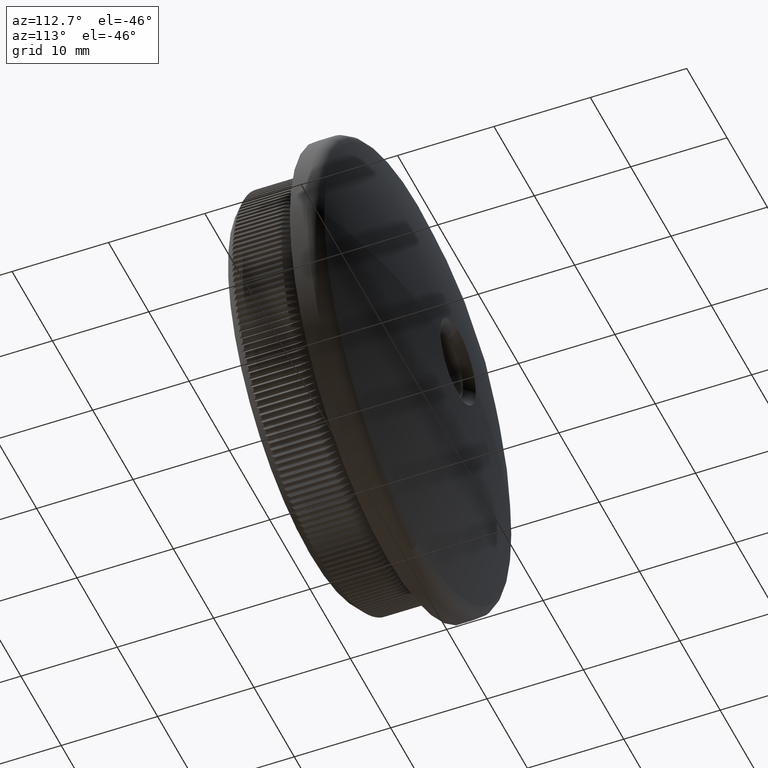
[diagram: clean part render]
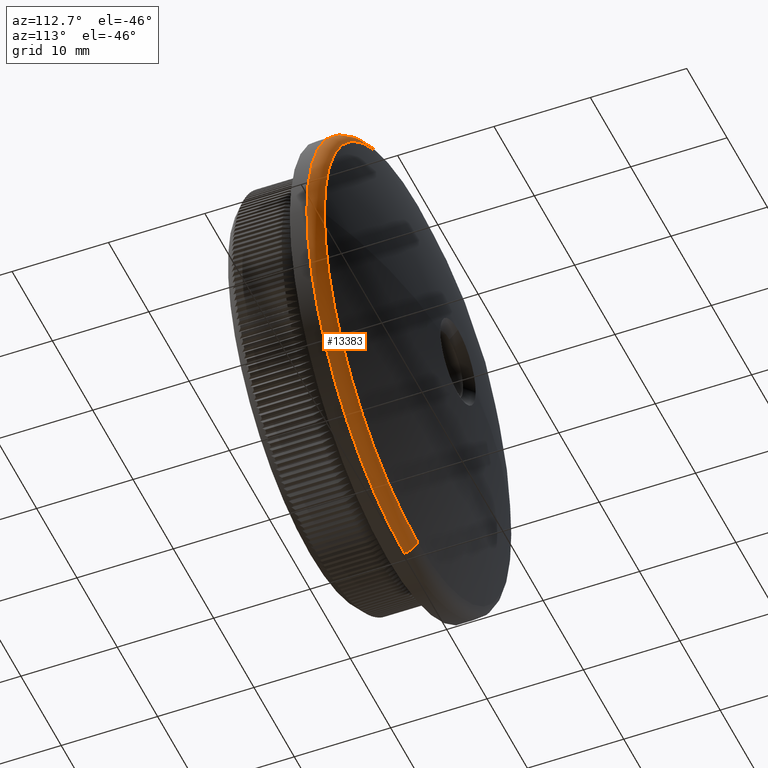
[diagram: same view with one face highlighted and labeled with its STEP entity id]
A machine part, auxiliary view. The second image highlights one B-rep face of the part: STEP entity #13383.
In plain terms, the highlighted toroidal blend (fillet) surface has major radius 22.65 mm and minor (blend) radius 1.5 mm.
Its self-contained STEP definition (entity closure, byte-faithful):
#632 = ORIENTED_EDGE ( 'NONE', *, *, #32624, .F. ) ;
#666 = EDGE_CURVE ( 'NONE', #7052, #14712, #18831, .T. ) ;
#1428 = CARTESIAN_POINT ( 'NONE',  ( 0.0000000000000000000, 9.780020886796899400, -22.64999999999999900 ) ) ;
#2167 = EDGE_CURVE ( 'NONE', #27182, #14712, #27425, .T. ) ;
#5673 = ORIENTED_EDGE ( 'NONE', *, *, #25198, .F. ) ;
#5704 = VERTEX_POINT ( 'NONE', #10604 ) ;
#6324 = ORIENTED_EDGE ( 'NONE', *, *, #666, .F. ) ;
#7052 = VERTEX_POINT ( 'NONE', #20575 ) ;
#8543 = FACE_OUTER_BOUND ( 'NONE', #15324, .T. ) ;
#8971 = DIRECTION ( 'NONE',  ( 0.0000000000000000000, 0.0000000000000000000, 1.000000000000000000 ) ) ;
#9097 = DIRECTION ( 'NONE',  ( 0.0000000000000000000, 0.0000000000000000000, -1.000000000000000000 ) ) ;
#9393 = VERTEX_POINT ( 'NONE', #21310 ) ;
#9865 = CARTESIAN_POINT ( 'NONE',  ( 0.0000000000000000000, 11.17937736945556700, 0.0000000000000000000 ) ) ;
#9947 = AXIS2_PLACEMENT_3D ( 'NONE', #11971, #27029, #9097 ) ;
#10111 = AXIS2_PLACEMENT_3D ( 'NONE', #1428, #14179, #8971 ) ;
#10604 = CARTESIAN_POINT ( 'NONE',  ( 23.19018648117216600, 11.17937736945556400, 0.0000000000000000000 ) ) ;
#11971 = CARTESIAN_POINT ( 'NONE',  ( 0.0000000000000000000, 9.780020886796899400, 0.0000000000000000000 ) ) ;
#12028 = CIRCLE ( 'NONE', #18290, 23.19018648117216600 ) ;
#13142 = AXIS2_PLACEMENT_3D ( 'NONE', #21676, #32054, #19582 ) ;
#13182 = DIRECTION ( 'NONE',  ( -1.224646799147352000E-016, 0.0000000000000000000, -1.000000000000000000 ) ) ;
#13383 = ADVANCED_FACE ( 'NONE', ( #8543 ), #20841, .T. ) ;
#13578 = EDGE_CURVE ( 'NONE', #5704, #9393, #27166, .T. ) ;
#14179 = DIRECTION ( 'NONE',  ( -1.000000000000000000, 0.0000000000000000000, 0.0000000000000000000 ) ) ;
#14712 = VERTEX_POINT ( 'NONE', #30157 ) ;
#15324 = EDGE_LOOP ( 'NONE', ( #5673, #15992, #6324, #632, #21090 ) ) ;
#15770 = DIRECTION ( 'NONE',  ( 1.000000000000000000, 0.0000000000000000000, -1.224646799147353200E-016 ) ) ;
#15976 = CARTESIAN_POINT ( 'NONE',  ( 0.0000000000000000000, 11.17937736945556700, 0.0000000000000000000 ) ) ;
#15992 = ORIENTED_EDGE ( 'NONE', *, *, #2167, .T. ) ;
#16755 = AXIS2_PLACEMENT_3D ( 'NONE', #9865, #27240, #22620 ) ;
#18290 = AXIS2_PLACEMENT_3D ( 'NONE', #15976, #31001, #23398 ) ;
#18831 = CIRCLE ( 'NONE', #13142, 24.15000000000000200 ) ;
#19022 = CARTESIAN_POINT ( 'NONE',  ( 2.898750392260314800E-015, 11.17937736945556700, 23.19018648117216600 ) ) ;
#19582 = DIRECTION ( 'NONE',  ( 0.0000000000000000000, 0.0000000000000000000, -1.000000000000000000 ) ) ;
#19776 = AXIS2_PLACEMENT_3D ( 'NONE', #30798, #15770, #13182 ) ;
#20575 = CARTESIAN_POINT ( 'NONE',  ( 0.0000000000000000000, 9.780020886796899400, -24.15000000000000200 ) ) ;
#20841 = TOROIDAL_SURFACE ( 'NONE', #9947, 22.64999999999999900, 1.500000000000000000 ) ;
#21090 = ORIENTED_EDGE ( 'NONE', *, *, #13578, .F. ) ;
#21310 = CARTESIAN_POINT ( 'NONE',  ( 0.0000000000000000000, 11.17937736945556700, -23.19018648117216600 ) ) ;
#21676 = CARTESIAN_POINT ( 'NONE',  ( 0.0000000000000000000, 9.780020886796899400, 0.0000000000000000000 ) ) ;
#22620 = DIRECTION ( 'NONE',  ( 0.0000000000000000000, 0.0000000000000000000, -1.000000000000000000 ) ) ;
#23398 = DIRECTION ( 'NONE',  ( 0.0000000000000000000, 0.0000000000000000000, -1.000000000000000000 ) ) ;
#25198 = EDGE_CURVE ( 'NONE', #27182, #5704, #12028, .T. ) ;
#27029 = DIRECTION ( 'NONE',  ( -0.0000000000000000000, -1.000000000000000000, -0.0000000000000000000 ) ) ;
#27166 = CIRCLE ( 'NONE', #16755, 23.19018648117216600 ) ;
#27182 = VERTEX_POINT ( 'NONE', #19022 ) ;
#27240 = DIRECTION ( 'NONE',  ( 0.0000000000000000000, 1.000000000000000000, 0.0000000000000000000 ) ) ;
#27425 = CIRCLE ( 'NONE', #19776, 1.500000000000001300 ) ;
#27702 = CIRCLE ( 'NONE', #10111, 1.500000000000001300 ) ;
#30157 = CARTESIAN_POINT ( 'NONE',  ( 2.957522019940858300E-015, 9.780020886796899400, 24.15000000000000200 ) ) ;
#30798 = CARTESIAN_POINT ( 'NONE',  ( 2.773825000068754800E-015, 9.780020886796899400, 22.64999999999999900 ) ) ;
#31001 = DIRECTION ( 'NONE',  ( 0.0000000000000000000, 1.000000000000000000, 0.0000000000000000000 ) ) ;
#32054 = DIRECTION ( 'NONE',  ( -0.0000000000000000000, -1.000000000000000000, -0.0000000000000000000 ) ) ;
#32624 = EDGE_CURVE ( 'NONE', #9393, #7052, #27702, .T. ) ;